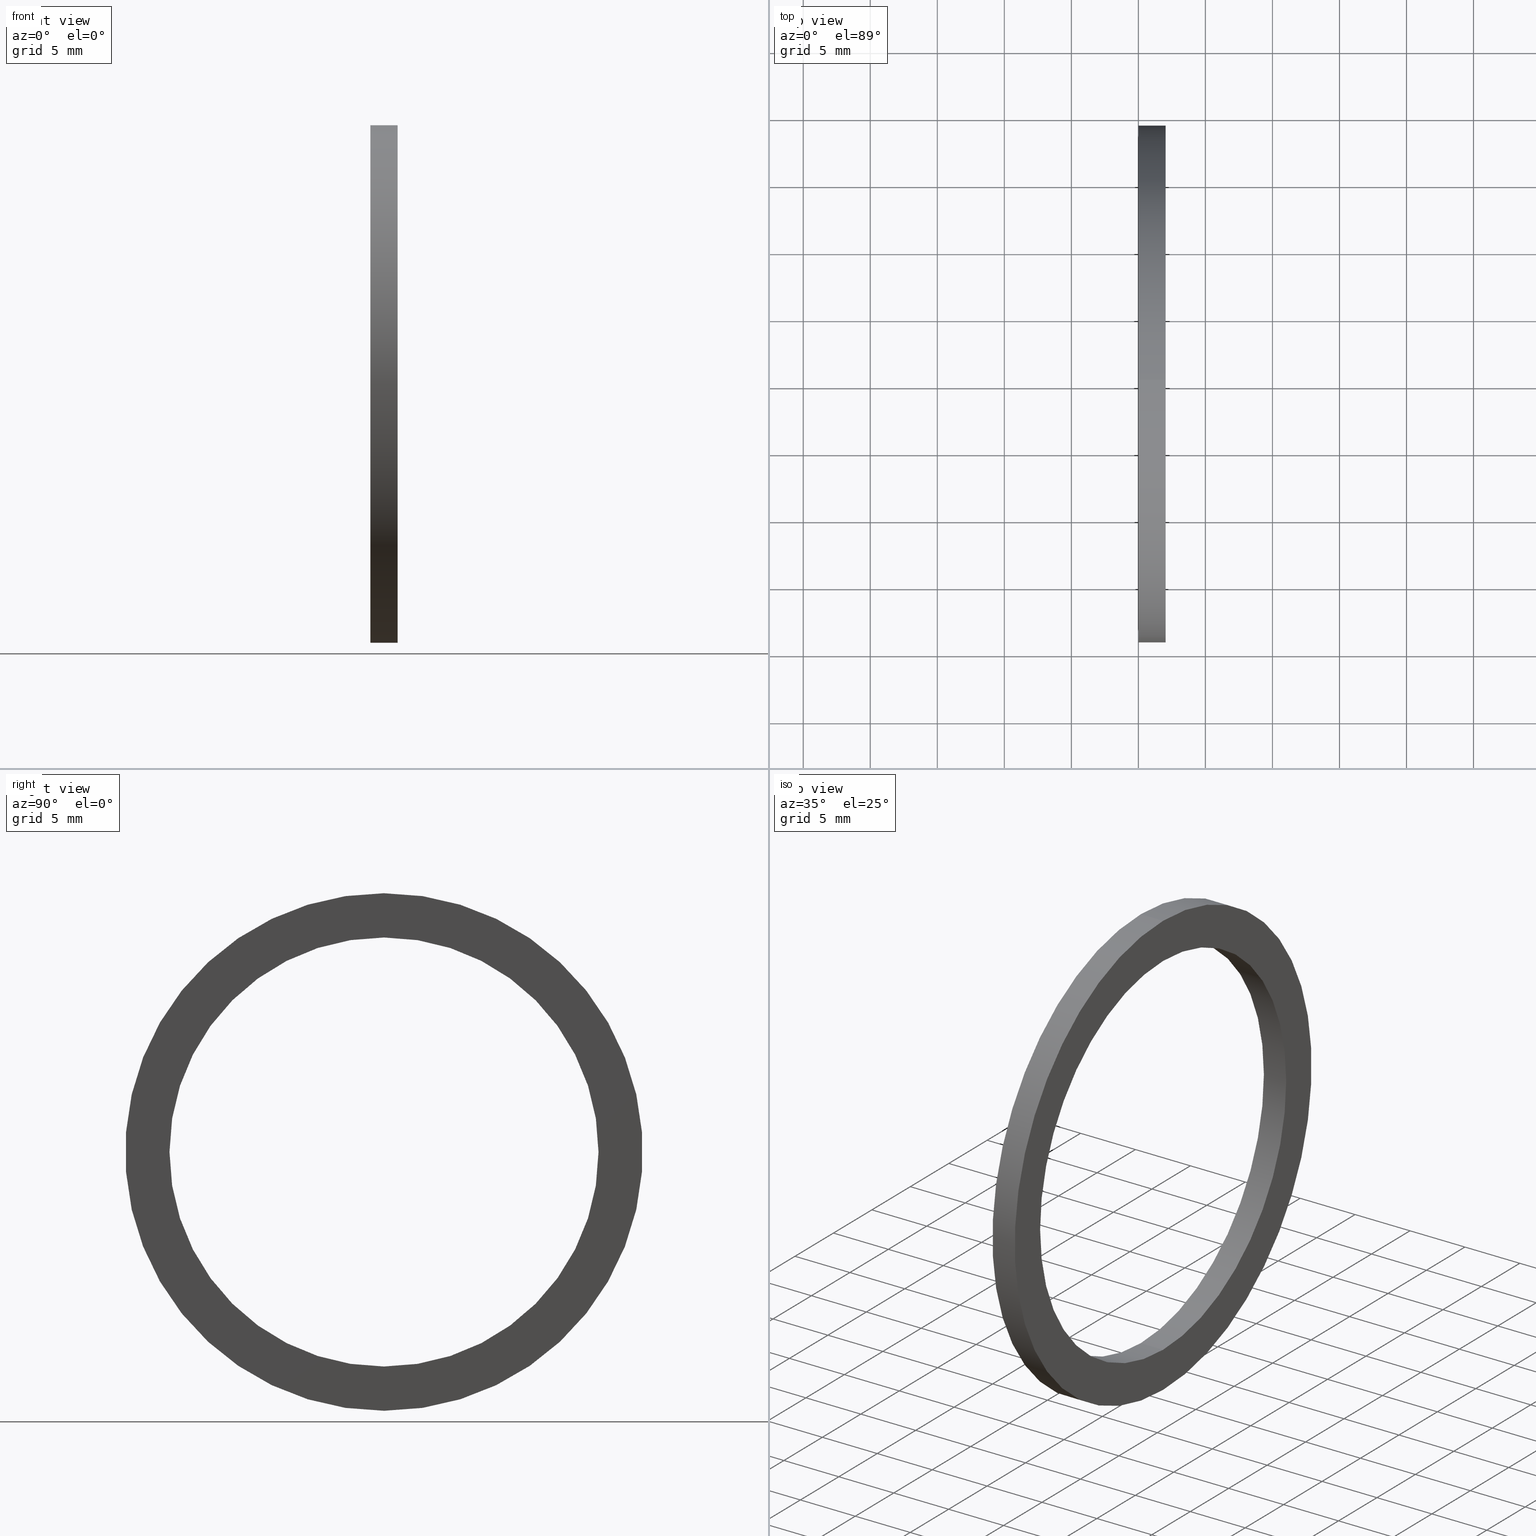
[diagram: canonical four-view strip — front | top / right | iso, engineering-drawing reading convention]
A machine part, canonical four-view strip (front | top / right | iso — engineering-drawing reading convention). The complete STEP part file that produces these views, byte-faithful:
ISO-10303-21;
HEADER;
FILE_DESCRIPTION (( 'STEP AP203' ),
    '1' );
FILE_NAME ('MS-32-NY.STEP',
    '2008-03-29T07:52:32',
    ( '' ),
    ( '' ),
    'SwSTEP 2.0',
    'SolidWorks 2007',
    '' );
FILE_SCHEMA (( 'CONFIG_CONTROL_DESIGN' ));
ENDSEC;

DATA;
#1 = EDGE_CURVE ( 'NONE', #28, #21, #50, .T. ) ;
#2 = EDGE_CURVE ( 'NONE', #7, #21, #146, .T. ) ;
#3 = ORIENTED_EDGE ( 'NONE', *, *, #49, .T. ) ;
#4 = ORIENTED_EDGE ( 'NONE', *, *, #5, .T. ) ;
#5 = EDGE_CURVE ( 'NONE', #8, #19, #178, .T. ) ;
#6 = EDGE_LOOP ( 'NONE', ( #14, #41 ) ) ;
#7 = VERTEX_POINT ( 'NONE', #129 ) ;
#8 = VERTEX_POINT ( 'NONE', #128 ) ;
#9 = ORIENTED_EDGE ( 'NONE', *, *, #49, .F. ) ;
#10 = EDGE_CURVE ( 'NONE', #140, #28, #58, .T. ) ;
#11 = VERTEX_POINT ( 'NONE', #59 ) ;
#12 = ORIENTED_EDGE ( 'NONE', *, *, #22, .F. ) ;
#13 = ORIENTED_EDGE ( 'NONE', *, *, #39, .F. ) ;
#14 = ORIENTED_EDGE ( 'NONE', *, *, #15, .F. ) ;
#15 = EDGE_CURVE ( 'NONE', #21, #7, #82, .T. ) ;
#16 = EDGE_LOOP ( 'NONE', ( #3, #4 ) ) ;
#17 = ADVANCED_FACE ( 'NONE', ( #83 ), #126, .T. ) ;
#18 = ORIENTED_EDGE ( 'NONE', *, *, #22, .T. ) ;
#19 = VERTEX_POINT ( 'NONE', #127 ) ;
#20 = ORIENTED_EDGE ( 'NONE', *, *, #33, .F. ) ;
#21 = VERTEX_POINT ( 'NONE', #86 ) ;
#22 = EDGE_CURVE ( 'NONE', #23, #11, #65, .T. ) ;
#23 = VERTEX_POINT ( 'NONE', #66 ) ;
#24 = ORIENTED_EDGE ( 'NONE', *, *, #1, .F. ) ;
#25 = ORIENTED_EDGE ( 'NONE', *, *, #26, .T. ) ;
#26 = EDGE_CURVE ( 'NONE', #11, #8, #85, .T. ) ;
#27 = EDGE_LOOP ( 'NONE', ( #18, #25, #9, #20 ) ) ;
#28 = VERTEX_POINT ( 'NONE', #93 ) ;
#29 = EDGE_CURVE ( 'NONE', #140, #7, #121, .T. ) ;
#30 = ORIENTED_EDGE ( 'NONE', *, *, #2, .T. ) ;
#31 = ORIENTED_EDGE ( 'NONE', *, *, #5, .F. ) ;
#32 = ADVANCED_FACE ( 'NONE', ( #117, #150 ), #148, .T. ) ;
#33 = EDGE_CURVE ( 'NONE', #23, #19, #149, .T. ) ;
#34 = ADVANCED_FACE ( 'NONE', ( #73, #72 ), #70, .T. ) ;
#35 = ADVANCED_FACE ( 'NONE', ( #71 ), #163, .T. ) ;
#36 = EDGE_LOOP ( 'NONE', ( #37, #38, #40, #31 ) ) ;
#37 = ORIENTED_EDGE ( 'NONE', *, *, #26, .F. ) ;
#38 = ORIENTED_EDGE ( 'NONE', *, *, #39, .T. ) ;
#39 = EDGE_CURVE ( 'NONE', #11, #23, #159, .T. ) ;
#40 = ORIENTED_EDGE ( 'NONE', *, *, #33, .T. ) ;
#41 = ORIENTED_EDGE ( 'NONE', *, *, #2, .F. ) ;
#42 = EDGE_LOOP ( 'NONE', ( #44, #45 ) ) ;
#43 = EDGE_CURVE ( 'NONE', #28, #140, #55, .T. ) ;
#44 = ORIENTED_EDGE ( 'NONE', *, *, #43, .T. ) ;
#45 = ORIENTED_EDGE ( 'NONE', *, *, #10, .T. ) ;
#46 = EDGE_LOOP ( 'NONE', ( #12, #13 ) ) ;
#47 = ADVANCED_FACE ( 'NONE', ( #56 ), #138, .F. ) ;
#48 = EDGE_LOOP ( 'NONE', ( #77, #177, #176, #139 ) ) ;
#49 = EDGE_CURVE ( 'NONE', #19, #8, #133, .T. ) ;
#50 = LINE ( 'NONE', #115, #153 ) ;
#51 = CARTESIAN_POINT ( 'NONE',  ( -1.721125226614714300, 0.0000000000000000000, 0.0000000000000000000 ) ) ;
#52 = DIRECTION ( 'NONE',  ( 0.0000000000000000000, 0.0000000000000000000, 1.000000000000000000 ) ) ;
#53 = DIRECTION ( 'NONE',  ( -1.000000000000000000, 0.0000000000000000000, 0.0000000000000000000 ) ) ;
#54 = AXIS2_PLACEMENT_3D ( 'NONE', #154, #53, #52 ) ;
#55 = CIRCLE ( 'NONE', #54, 0.6300000000000000000 ) ;
#56 = FACE_OUTER_BOUND ( 'NONE', #48, .T. ) ;
#57 = ADVANCED_FACE ( 'NONE', ( #134 ), #110, .F. ) ;
#58 = CIRCLE ( 'NONE', #144, 0.6300000000000000000 ) ;
#59 = CARTESIAN_POINT ( 'NONE',  ( 0.07999999999999996000, 9.307315673519883500E-017, -0.7599999999999999000 ) ) ;
#60 = DIRECTION ( 'NONE',  ( 0.0000000000000000000, 0.0000000000000000000, 1.000000000000000000 ) ) ;
#61 = DIRECTION ( 'NONE',  ( 0.0000000000000000000, 0.0000000000000000000, 1.000000000000000000 ) ) ;
#62 = DIRECTION ( 'NONE',  ( -1.000000000000000000, 0.0000000000000000000, 0.0000000000000000000 ) ) ;
#63 = CARTESIAN_POINT ( 'NONE',  ( 0.07999999999999996000, 0.0000000000000000000, 0.0000000000000000000 ) ) ;
#64 = AXIS2_PLACEMENT_3D ( 'NONE', #63, #62, #61 ) ;
#65 = CIRCLE ( 'NONE', #64, 0.7599999999999999000 ) ;
#66 = CARTESIAN_POINT ( 'NONE',  ( 0.07999999999999996000, 0.0000000000000000000, 0.7599999999999999000 ) ) ;
#67 = DIRECTION ( 'NONE',  ( -1.000000000000000000, 0.0000000000000000000, 0.0000000000000000000 ) ) ;
#68 = CARTESIAN_POINT ( 'NONE',  ( 2.510443025335873200E-017, -0.6300000000000000000, 0.0000000000000000000 ) ) ;
#69 = AXIS2_PLACEMENT_3D ( 'NONE', #68, #67, #165 ) ;
#70 = PLANE ( 'NONE',  #69 ) ;
#71 = FACE_OUTER_BOUND ( 'NONE', #36, .T. ) ;
#72 = FACE_BOUND ( 'NONE', #6, .T. ) ;
#73 = FACE_OUTER_BOUND ( 'NONE', #16, .T. ) ;
#74 = CARTESIAN_POINT ( 'NONE',  ( 0.0000000000000000000, 0.0000000000000000000, 0.0000000000000000000 ) ) ;
#75 = AXIS2_PLACEMENT_3D ( 'NONE', #152, #88, #87 ) ;
#76 = DIRECTION ( 'NONE',  ( 0.0000000000000000000, 0.0000000000000000000, 1.000000000000000000 ) ) ;
#77 = ORIENTED_EDGE ( 'NONE', *, *, #29, .F. ) ;
#78 = CARTESIAN_POINT ( 'NONE',  ( -1.721125226614714300, 0.0000000000000000000, 0.0000000000000000000 ) ) ;
#79 = DIRECTION ( 'NONE',  ( 0.0000000000000000000, 0.0000000000000000000, 1.000000000000000000 ) ) ;
#80 = DIRECTION ( 'NONE',  ( -1.000000000000000000, 0.0000000000000000000, 0.0000000000000000000 ) ) ;
#81 = AXIS2_PLACEMENT_3D ( 'NONE', #74, #80, #79 ) ;
#82 = CIRCLE ( 'NONE', #81, 0.6300000000000000000 ) ;
#83 = FACE_OUTER_BOUND ( 'NONE', #27, .T. ) ;
#84 = CARTESIAN_POINT ( 'NONE',  ( -1.721125226614714300, 9.307315673519883500E-017, -0.7599999999999999000 ) ) ;
#85 = LINE ( 'NONE', #84, #95 ) ;
#86 = CARTESIAN_POINT ( 'NONE',  ( 0.0000000000000000000, 0.0000000000000000000, 0.6300000000000000000 ) ) ;
#87 = DIRECTION ( 'NONE',  ( 0.0000000000000000000, 0.0000000000000000000, 1.000000000000000000 ) ) ;
#88 = DIRECTION ( 'NONE',  ( -1.000000000000000000, 0.0000000000000000000, 0.0000000000000000000 ) ) ;
#89 = PRODUCT ( 'MS-32-NY', 'MS-32-NY', '', ( #90 ) ) ;
#90 = MECHANICAL_CONTEXT ( 'NONE', #92, 'mechanical' ) ;
#91 = APPLICATION_PROTOCOL_DEFINITION ( 'international standard', 'config_control_design', 1994, #92 ) ;
#92 = APPLICATION_CONTEXT ( 'configuration controlled 3d designs of mechanical parts and assemblies' ) ;
#93 = CARTESIAN_POINT ( 'NONE',  ( 0.07999999999999996000, 0.0000000000000000000, 0.6300000000000000000 ) ) ;
#94 = DIRECTION ( 'NONE',  ( -1.000000000000000000, 0.0000000000000000000, 0.0000000000000000000 ) ) ;
#95 = VECTOR ( 'NONE', #94, 39.37007874015748100 ) ;
#96 = ORIENTED_EDGE ( 'NONE', *, *, #10, .F. ) ;
#97 = DIRECTION ( 'NONE',  ( -1.000000000000000000, 0.0000000000000000000, 0.0000000000000000000 ) ) ;
#98 = ADVANCED_BREP_SHAPE_REPRESENTATION ( 'MS-32-NY', ( #122, #169 ), #99 ) ;
#99 =( GEOMETRIC_REPRESENTATION_CONTEXT ( 3 ) GLOBAL_UNCERTAINTY_ASSIGNED_CONTEXT ( ( #100 ) ) GLOBAL_UNIT_ASSIGNED_CONTEXT ( ( #103, #102, #101 ) ) REPRESENTATION_CONTEXT ( 'NONE', 'WORKASPACE' ) );
#100 = UNCERTAINTY_MEASURE_WITH_UNIT (LENGTH_MEASURE( 1.000000000000000100E-005 ), #103, 'distance_accuracy_value', 'NONE');
#101 =( NAMED_UNIT ( * ) SI_UNIT ( $, .STERADIAN. ) SOLID_ANGLE_UNIT ( ) );
#102 =( NAMED_UNIT ( * ) PLANE_ANGLE_UNIT ( ) SI_UNIT ( $, .RADIAN. ) );
#103 =( CONVERSION_BASED_UNIT ( 'INCH', #104 ) LENGTH_UNIT ( ) NAMED_UNIT ( #105 ) );
#104 = LENGTH_MEASURE_WITH_UNIT ( LENGTH_MEASURE( 0.02539999999999999900 ), #106 );
#105 = DIMENSIONAL_EXPONENTS ( 1.000000000000000000, 0.0000000000000000000, 0.0000000000000000000, 0.0000000000000000000, 0.0000000000000000000, 0.0000000000000000000, 0.0000000000000000000 ) ;
#106 =( LENGTH_UNIT ( ) NAMED_UNIT ( * ) SI_UNIT ( $, .METRE. ) );
#107 = DIRECTION ( 'NONE',  ( 0.0000000000000000000, 0.0000000000000000000, 1.000000000000000000 ) ) ;
#108 = DIRECTION ( 'NONE',  ( -1.000000000000000000, 0.0000000000000000000, 0.0000000000000000000 ) ) ;
#109 = AXIS2_PLACEMENT_3D ( 'NONE', #112, #108, #107 ) ;
#110 = CYLINDRICAL_SURFACE ( 'NONE', #109, 0.6300000000000000000 ) ;
#111 = CARTESIAN_POINT ( 'NONE',  ( 0.07999999999999996000, 7.715274834628325400E-017, -0.6300000000000000000 ) ) ;
#112 = CARTESIAN_POINT ( 'NONE',  ( -1.721125226614714300, 0.0000000000000000000, 0.0000000000000000000 ) ) ;
#113 = DIRECTION ( 'NONE',  ( 0.0000000000000000000, 0.0000000000000000000, 1.000000000000000000 ) ) ;
#114 = DIRECTION ( 'NONE',  ( -1.000000000000000000, 0.0000000000000000000, 0.0000000000000000000 ) ) ;
#115 = CARTESIAN_POINT ( 'NONE',  ( -1.721125226614714300, 0.0000000000000000000, 0.6300000000000000000 ) ) ;
#116 = ORIENTED_EDGE ( 'NONE', *, *, #29, .T. ) ;
#117 = FACE_BOUND ( 'NONE', #42, .T. ) ;
#118 = DIRECTION ( 'NONE',  ( -1.000000000000000000, 0.0000000000000000000, 0.0000000000000000000 ) ) ;
#119 = VECTOR ( 'NONE', #118, 39.37007874015748100 ) ;
#120 = CARTESIAN_POINT ( 'NONE',  ( -1.721125226614714300, 7.715274834628325400E-017, -0.6300000000000000000 ) ) ;
#121 = LINE ( 'NONE', #120, #119 ) ;
#122 = MANIFOLD_SOLID_BREP ( 'NONE', #179 ) ;
#123 = DIRECTION ( 'NONE',  ( 0.0000000000000000000, 0.0000000000000000000, 1.000000000000000000 ) ) ;
#124 = DIRECTION ( 'NONE',  ( -1.000000000000000000, 0.0000000000000000000, 0.0000000000000000000 ) ) ;
#125 = AXIS2_PLACEMENT_3D ( 'NONE', #78, #124, #123 ) ;
#126 = CYLINDRICAL_SURFACE ( 'NONE', #125, 0.7599999999999999000 ) ;
#127 = CARTESIAN_POINT ( 'NONE',  ( 0.0000000000000000000, 0.0000000000000000000, 0.7599999999999999000 ) ) ;
#128 = CARTESIAN_POINT ( 'NONE',  ( 0.0000000000000000000, 9.307315673519883500E-017, -0.7599999999999999000 ) ) ;
#129 = CARTESIAN_POINT ( 'NONE',  ( 0.0000000000000000000, 7.715274834628325400E-017, -0.6300000000000000000 ) ) ;
#130 = DIRECTION ( 'NONE',  ( -1.000000000000000000, 0.0000000000000000000, 0.0000000000000000000 ) ) ;
#131 = CARTESIAN_POINT ( 'NONE',  ( 0.0000000000000000000, 0.0000000000000000000, 0.0000000000000000000 ) ) ;
#132 = AXIS2_PLACEMENT_3D ( 'NONE', #131, #130, #113 ) ;
#133 = CIRCLE ( 'NONE', #132, 0.7599999999999999000 ) ;
#134 = FACE_OUTER_BOUND ( 'NONE', #166, .T. ) ;
#135 = DIRECTION ( 'NONE',  ( 0.0000000000000000000, 0.0000000000000000000, 1.000000000000000000 ) ) ;
#136 = DIRECTION ( 'NONE',  ( -1.000000000000000000, 0.0000000000000000000, 0.0000000000000000000 ) ) ;
#137 = AXIS2_PLACEMENT_3D ( 'NONE', #51, #136, #135 ) ;
#138 = CYLINDRICAL_SURFACE ( 'NONE', #137, 0.6300000000000000000 ) ;
#139 = ORIENTED_EDGE ( 'NONE', *, *, #15, .T. ) ;
#140 = VERTEX_POINT ( 'NONE', #111 ) ;
#141 = DIRECTION ( 'NONE',  ( 0.0000000000000000000, 0.0000000000000000000, 1.000000000000000000 ) ) ;
#142 = DIRECTION ( 'NONE',  ( -1.000000000000000000, 0.0000000000000000000, 0.0000000000000000000 ) ) ;
#143 = CARTESIAN_POINT ( 'NONE',  ( 0.07999999999999996000, 0.0000000000000000000, 0.0000000000000000000 ) ) ;
#144 = AXIS2_PLACEMENT_3D ( 'NONE', #143, #142, #141 ) ;
#145 = AXIS2_PLACEMENT_3D ( 'NONE', #151, #97, #76 ) ;
#146 = CIRCLE ( 'NONE', #145, 0.6300000000000000000 ) ;
#147 = AXIS2_PLACEMENT_3D ( 'NONE', #175, #174, #173 ) ;
#148 = PLANE ( 'NONE',  #147 ) ;
#149 = LINE ( 'NONE', #172, #171 ) ;
#150 = FACE_OUTER_BOUND ( 'NONE', #46, .T. ) ;
#151 = CARTESIAN_POINT ( 'NONE',  ( 0.0000000000000000000, 0.0000000000000000000, 0.0000000000000000000 ) ) ;
#152 = CARTESIAN_POINT ( 'NONE',  ( 0.0000000000000000000, 0.0000000000000000000, 0.0000000000000000000 ) ) ;
#153 = VECTOR ( 'NONE', #114, 39.37007874015748100 ) ;
#154 = CARTESIAN_POINT ( 'NONE',  ( 0.07999999999999996000, 0.0000000000000000000, 0.0000000000000000000 ) ) ;
#155 = DIRECTION ( 'NONE',  ( 0.0000000000000000000, 0.0000000000000000000, 1.000000000000000000 ) ) ;
#156 = DIRECTION ( 'NONE',  ( -1.000000000000000000, 0.0000000000000000000, 0.0000000000000000000 ) ) ;
#157 = CARTESIAN_POINT ( 'NONE',  ( 0.07999999999999996000, 0.0000000000000000000, 0.0000000000000000000 ) ) ;
#158 = AXIS2_PLACEMENT_3D ( 'NONE', #157, #156, #155 ) ;
#159 = CIRCLE ( 'NONE', #158, 0.7599999999999999000 ) ;
#160 = DIRECTION ( 'NONE',  ( 0.0000000000000000000, 0.0000000000000000000, 1.000000000000000000 ) ) ;
#161 = DIRECTION ( 'NONE',  ( -1.000000000000000000, 0.0000000000000000000, 0.0000000000000000000 ) ) ;
#162 = AXIS2_PLACEMENT_3D ( 'NONE', #164, #161, #160 ) ;
#163 = CYLINDRICAL_SURFACE ( 'NONE', #162, 0.7599999999999999000 ) ;
#164 = CARTESIAN_POINT ( 'NONE',  ( -1.721125226614714300, 0.0000000000000000000, 0.0000000000000000000 ) ) ;
#165 = DIRECTION ( 'NONE',  ( 0.0000000000000000000, 0.0000000000000000000, 1.000000000000000000 ) ) ;
#166 = EDGE_LOOP ( 'NONE', ( #96, #116, #30, #24 ) ) ;
#167 = DIRECTION ( 'NONE',  ( 1.000000000000000000, 0.0000000000000000000, 0.0000000000000000000 ) ) ;
#168 = CARTESIAN_POINT ( 'NONE',  ( 0.0000000000000000000, 0.0000000000000000000, 0.0000000000000000000 ) ) ;
#169 = AXIS2_PLACEMENT_3D ( 'NONE', #168, #60, #167 ) ;
#170 = DIRECTION ( 'NONE',  ( -1.000000000000000000, 0.0000000000000000000, 0.0000000000000000000 ) ) ;
#171 = VECTOR ( 'NONE', #170, 39.37007874015748100 ) ;
#172 = CARTESIAN_POINT ( 'NONE',  ( -1.721125226614714300, 0.0000000000000000000, 0.7599999999999999000 ) ) ;
#173 = DIRECTION ( 'NONE',  ( 0.0000000000000000000, 0.0000000000000000000, -1.000000000000000000 ) ) ;
#174 = DIRECTION ( 'NONE',  ( 1.000000000000000000, 0.0000000000000000000, 0.0000000000000000000 ) ) ;
#175 = CARTESIAN_POINT ( 'NONE',  ( 0.08000000000000002900, -0.6300000000000000000, 0.0000000000000000000 ) ) ;
#176 = ORIENTED_EDGE ( 'NONE', *, *, #1, .T. ) ;
#177 = ORIENTED_EDGE ( 'NONE', *, *, #43, .F. ) ;
#178 = CIRCLE ( 'NONE', #75, 0.7599999999999999000 ) ;
#179 = CLOSED_SHELL ( 'NONE', ( #57, #17, #34, #35, #32, #47 ) ) ;
#180 = PERSON_AND_ORGANIZATION_ROLE ( 'design_owner' ) ;
#181 = APPROVAL ( #243, 'UNSPECIFIED' ) ;
#182 = SHAPE_DEFINITION_REPRESENTATION ( #183, #98 ) ;
#183 = PRODUCT_DEFINITION_SHAPE ( 'NONE', 'NONE',  #198 ) ;
#184 = PRODUCT_RELATED_PRODUCT_CATEGORY ( 'detail', '', ( #89 ) ) ;
#185 = CC_DESIGN_SECURITY_CLASSIFICATION ( #207, ( #201 ) ) ;
#186 = PERSON_AND_ORGANIZATION ( #252, #223 ) ;
#187 = CC_DESIGN_DATE_AND_TIME_ASSIGNMENT ( #189, #188, ( #207 ) ) ;
#188 = DATE_TIME_ROLE ( 'classification_date' ) ;
#189 = DATE_AND_TIME ( #190, #191 ) ;
#190 = CALENDAR_DATE ( 2008, 29, 3 ) ;
#191 = LOCAL_TIME ( 13, 22, 32.00000000000000000, #203 ) ;
#192 = CC_DESIGN_DATE_AND_TIME_ASSIGNMENT ( #200, #199, ( #198 ) ) ;
#193 = CC_DESIGN_APPROVAL ( #218, ( #201 ) ) ;
#194 = APPROVAL_DATE_TIME ( #215, #218 ) ;
#195 = CALENDAR_DATE ( 2008, 29, 3 ) ;
#196 = LOCAL_TIME ( 13, 22, 32.00000000000000000, #197 ) ;
#197 = COORDINATED_UNIVERSAL_TIME_OFFSET ( 5, 30, .AHEAD. ) ;
#198 = PRODUCT_DEFINITION ( 'UNKNOWN', '', #201, #202 ) ;
#199 = DATE_TIME_ROLE ( 'creation_date' ) ;
#200 = DATE_AND_TIME ( #244, #245 ) ;
#201 = PRODUCT_DEFINITION_FORMATION_WITH_SPECIFIED_SOURCE ( 'ANY', '', #89, .NOT_KNOWN. ) ;
#202 = DESIGN_CONTEXT ( 'detailed design', #209, 'design' ) ;
#203 = COORDINATED_UNIVERSAL_TIME_OFFSET ( 5, 30, .AHEAD. ) ;
#204 = CC_DESIGN_PERSON_AND_ORGANIZATION_ASSIGNMENT ( #206, #205, ( #207 ) ) ;
#205 = PERSON_AND_ORGANIZATION_ROLE ( 'classification_officer' ) ;
#206 = PERSON_AND_ORGANIZATION ( #252, #223 ) ;
#207 = SECURITY_CLASSIFICATION ( '', '', #208 ) ;
#208 = SECURITY_CLASSIFICATION_LEVEL ( 'unclassified' ) ;
#209 = APPLICATION_CONTEXT ( 'configuration controlled 3d designs of mechanical parts and assemblies' ) ;
#210 = PERSON_AND_ORGANIZATION ( #252, #223 ) ;
#211 = DATE_AND_TIME ( #214, #212 ) ;
#212 = LOCAL_TIME ( 13, 22, 32.00000000000000000, #248 ) ;
#213 = CC_DESIGN_APPROVAL ( #181, ( #198 ) ) ;
#214 = CALENDAR_DATE ( 2008, 29, 3 ) ;
#215 = DATE_AND_TIME ( #195, #196 ) ;
#216 = APPROVAL_PERSON_ORGANIZATION ( #220, #218, #217 ) ;
#217 = APPROVAL_ROLE ( '' ) ;
#218 = APPROVAL ( #219, 'UNSPECIFIED' ) ;
#219 = APPROVAL_STATUS ( 'not_yet_approved' ) ;
#220 = PERSON_AND_ORGANIZATION ( #252, #223 ) ;
#221 = CC_DESIGN_PERSON_AND_ORGANIZATION_ASSIGNMENT ( #229, #228, ( #198 ) ) ;
#222 = APPROVAL_ROLE ( '' ) ;
#223 = ORGANIZATION ( 'UNSPECIFIED', 'UNSPECIFIED', '' ) ;
#224 = APPLICATION_PROTOCOL_DEFINITION ( 'international standard', 'config_control_design', 1994, #209 ) ;
#225 = CC_DESIGN_PERSON_AND_ORGANIZATION_ASSIGNMENT ( #227, #226, ( #201 ) ) ;
#226 = PERSON_AND_ORGANIZATION_ROLE ( 'design_supplier' ) ;
#227 = PERSON_AND_ORGANIZATION ( #252, #223 ) ;
#228 = PERSON_AND_ORGANIZATION_ROLE ( 'creator' ) ;
#229 = PERSON_AND_ORGANIZATION ( #252, #223 ) ;
#230 = PERSON_AND_ORGANIZATION ( #252, #223 ) ;
#231 = CC_DESIGN_APPROVAL ( #239, ( #207 ) ) ;
#232 = APPROVAL_DATE_TIME ( #233, #239 ) ;
#233 = DATE_AND_TIME ( #234, #235 ) ;
#234 = CALENDAR_DATE ( 2008, 29, 3 ) ;
#235 = LOCAL_TIME ( 13, 22, 32.00000000000000000, #236 ) ;
#236 = COORDINATED_UNIVERSAL_TIME_OFFSET ( 5, 30, .AHEAD. ) ;
#237 = APPROVAL_PERSON_ORGANIZATION ( #186, #239, #238 ) ;
#238 = APPROVAL_ROLE ( '' ) ;
#239 = APPROVAL ( #240, 'UNSPECIFIED' ) ;
#240 = APPROVAL_STATUS ( 'not_yet_approved' ) ;
#241 = CC_DESIGN_PERSON_AND_ORGANIZATION_ASSIGNMENT ( #210, #180, ( #89 ) ) ;
#242 = APPROVAL_PERSON_ORGANIZATION ( #230, #181, #222 ) ;
#243 = APPROVAL_STATUS ( 'not_yet_approved' ) ;
#244 = CALENDAR_DATE ( 2008, 29, 3 ) ;
#245 = LOCAL_TIME ( 13, 22, 32.00000000000000000, #246 ) ;
#246 = COORDINATED_UNIVERSAL_TIME_OFFSET ( 5, 30, .AHEAD. ) ;
#247 = APPROVAL_DATE_TIME ( #211, #181 ) ;
#248 = COORDINATED_UNIVERSAL_TIME_OFFSET ( 5, 30, .AHEAD. ) ;
#249 = CC_DESIGN_PERSON_AND_ORGANIZATION_ASSIGNMENT ( #251, #250, ( #201 ) ) ;
#250 = PERSON_AND_ORGANIZATION_ROLE ( 'creator' ) ;
#251 = PERSON_AND_ORGANIZATION ( #252, #223 ) ;
#252 = PERSON ( 'UNSPECIFIED', 'UNSPECIFIED', 'UNSPECIFIED', ('UNSPECIFIED'), ('UNSPECIFIED'), ('UNSPECIFIED') ) ;
ENDSEC;
END-ISO-10303-21;
